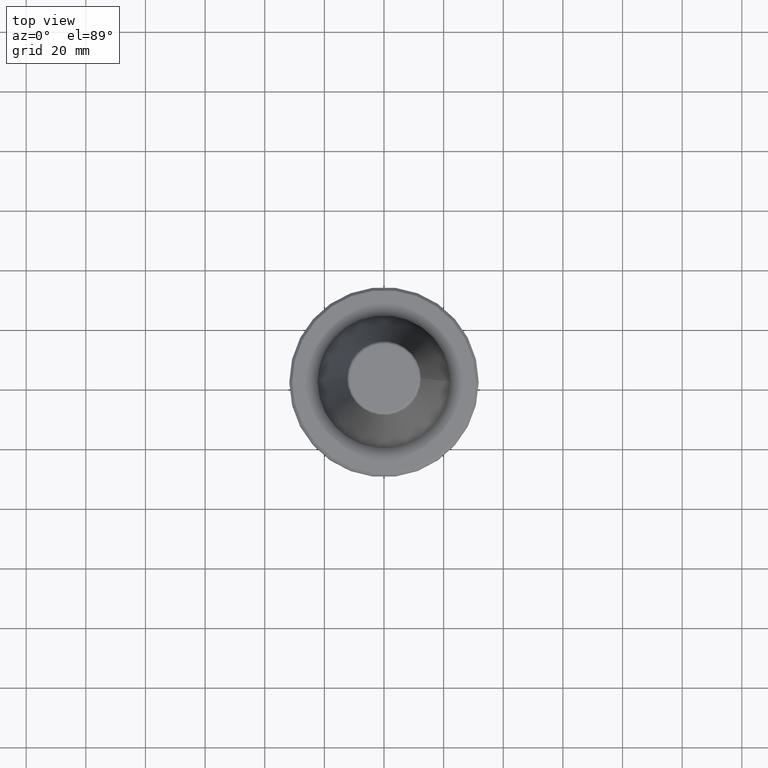
[diagram: clean part render]
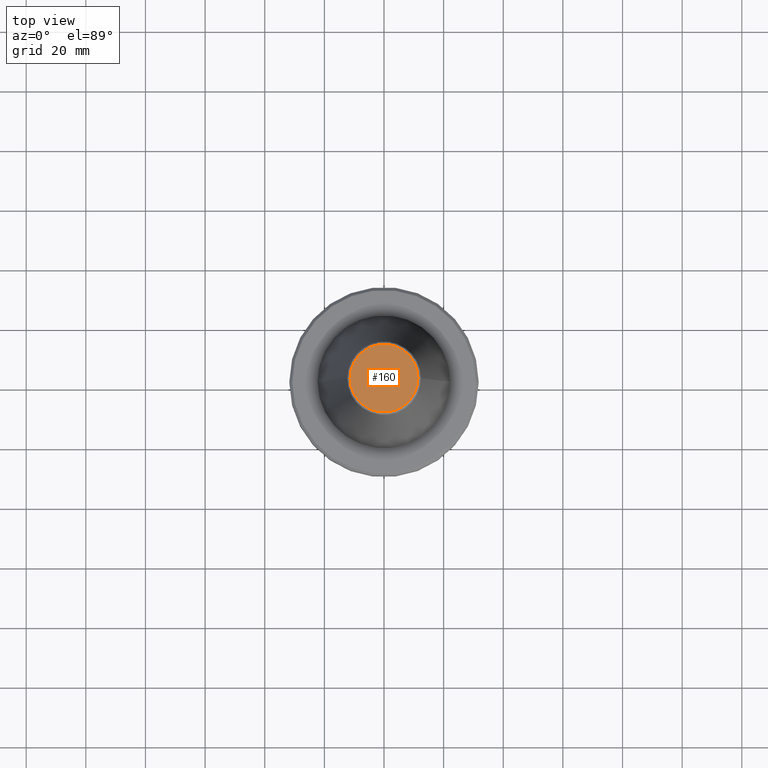
[diagram: same view with one face highlighted and labeled with its STEP entity id]
A machine part, top view. The second image highlights one B-rep face of the part: STEP entity #160.
In plain terms, the highlighted planar face has unit normal (0, -0, 1).
Its self-contained STEP definition (entity closure, byte-faithful):
#87 = VERTEX_POINT ( 'NONE', #812 ) ;
#160 = ADVANCED_FACE ( 'NONE', ( #1107 ), #859, .T. ) ;
#213 = CARTESIAN_POINT ( 'NONE',  ( -11.38516258961893100, 1.454871700296352000E-015, 68.40000000000000600 ) ) ;
#236 = EDGE_CURVE ( 'NONE', #87, #1208, #612, .T. ) ;
#325 = CARTESIAN_POINT ( 'NONE',  ( 0.0000000000000000000, -8.337524199435086500E-014, 68.39999999999999100 ) ) ;
#352 = AXIS2_PLACEMENT_3D ( 'NONE', #1062, #518, #1164 ) ;
#394 = AXIS2_PLACEMENT_3D ( 'NONE', #325, #1259, #982 ) ;
#486 = ORIENTED_EDGE ( 'NONE', *, *, #236, .T. ) ;
#508 = ORIENTED_EDGE ( 'NONE', *, *, #1173, .T. ) ;
#518 = DIRECTION ( 'NONE',  ( -0.0000000000000000000, -0.0000000000000000000, 1.000000000000000000 ) ) ;
#612 = CIRCLE ( 'NONE', #706, 11.38516258961893100 ) ;
#706 = AXIS2_PLACEMENT_3D ( 'NONE', #893, #1187, #884 ) ;
#812 = CARTESIAN_POINT ( 'NONE',  ( 11.38516258961893100, 0.0000000000000000000, 68.40000000000000600 ) ) ;
#859 = PLANE ( 'NONE',  #394 ) ;
#884 = DIRECTION ( 'NONE',  ( 1.000000000000000000, 0.0000000000000000000, 0.0000000000000000000 ) ) ;
#893 = CARTESIAN_POINT ( 'NONE',  ( 0.0000000000000000000, 0.0000000000000000000, 68.40000000000000600 ) ) ;
#982 = DIRECTION ( 'NONE',  ( 1.000000000000000000, 0.0000000000000000000, 0.0000000000000000000 ) ) ;
#1062 = CARTESIAN_POINT ( 'NONE',  ( 0.0000000000000000000, 0.0000000000000000000, 68.40000000000000600 ) ) ;
#1107 = FACE_OUTER_BOUND ( 'NONE', #1134, .T. ) ;
#1134 = EDGE_LOOP ( 'NONE', ( #486, #508 ) ) ;
#1153 = CIRCLE ( 'NONE', #352, 11.38516258961893100 ) ;
#1164 = DIRECTION ( 'NONE',  ( 1.000000000000000000, 0.0000000000000000000, 0.0000000000000000000 ) ) ;
#1173 = EDGE_CURVE ( 'NONE', #1208, #87, #1153, .T. ) ;
#1187 = DIRECTION ( 'NONE',  ( -0.0000000000000000000, -0.0000000000000000000, 1.000000000000000000 ) ) ;
#1208 = VERTEX_POINT ( 'NONE', #213 ) ;
#1259 = DIRECTION ( 'NONE',  ( 0.0000000000000000000, -0.0000000000000000000, 1.000000000000000000 ) ) ;